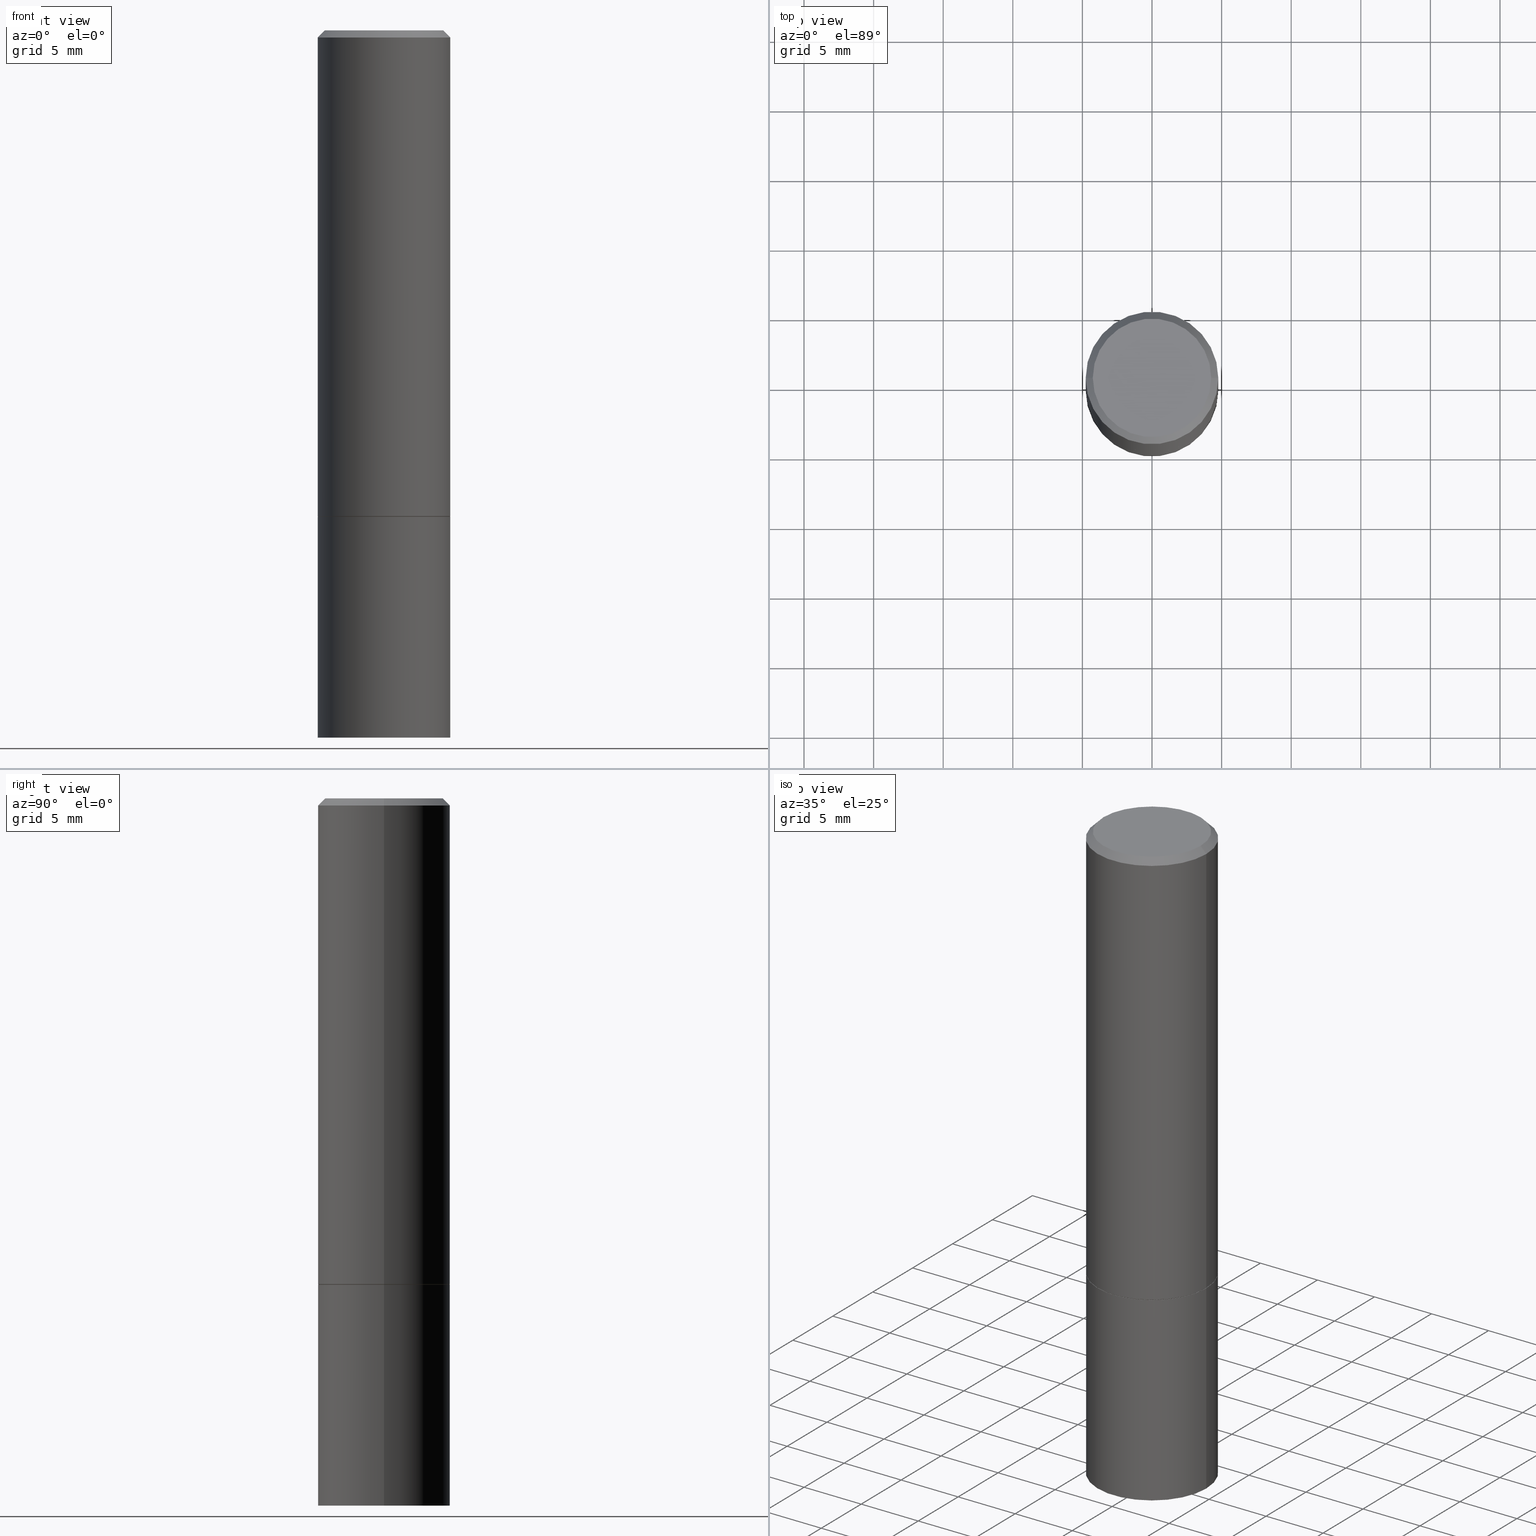
[diagram: canonical four-view strip — front | top / right | iso, engineering-drawing reading convention]
A machine part, canonical four-view strip (front | top / right | iso — engineering-drawing reading convention). The complete STEP part file that produces these views, byte-faithful:
ISO-10303-21;
HEADER;
FILE_DESCRIPTION (( 'STEP AP203' ),
    '1' );
FILE_NAME ('31259.STEP',
    '2024-02-27T12:58:54',
    ( '' ),
    ( '' ),
    'SwSTEP 2.0',
    'SolidWorks 2023',
    '' );
FILE_SCHEMA (( 'CONFIG_CONTROL_DESIGN' ));
ENDSEC;

DATA;
#1 = ORIENTED_EDGE ( 'NONE', *, *, #124, .F. ) ;
#2 = EDGE_LOOP ( 'NONE', ( #305, #269, #149, #128 ) ) ;
#3 = PERSON_AND_ORGANIZATION ( #155, #77 ) ;
#4 = CIRCLE ( 'NONE', #261, 0.1864999999999999714 ) ;
#5 = LOCAL_TIME ( 7, 58, 54.00000000000000000, #276 ) ;
#6 = ADVANCED_FACE ( 'NONE', ( #326 ), #299, .T. ) ;
#7 = DIRECTION ( 'NONE',  ( 1.000000000000000000, -6.982962677686266711E-15, 0.000000000000000000 ) ) ;
#8 = CC_DESIGN_PERSON_AND_ORGANIZATION_ASSIGNMENT ( #359, #62, ( #316 ) ) ;
#9 = CARTESIAN_POINT ( 'NONE',  ( 4.890937612370283668E-31, -6.982962677686305168E-17, -0.02000000000000004205 ) ) ;
#10 = CARTESIAN_POINT ( 'NONE',  ( 3.360074139698377778E-29, -4.797295359570481134E-15, -1.373999999999999888 ) ) ;
#11 = ADVANCED_FACE ( 'NONE', ( #349 ), #215, .T. ) ;
#12 = AXIS2_PLACEMENT_3D ( 'NONE', #157, #112, #7 ) ;
#13 = ORIENTED_EDGE ( 'NONE', *, *, #86, .F. ) ;
#14 = APPROVAL ( #301, 'UNSPECIFIED' ) ;
#15 = CARTESIAN_POINT ( 'NONE',  ( -0.1875000000000000278, -4.559607129747620988E-15, -2.000000000000000000 ) ) ;
#16 = EDGE_LOOP ( 'NONE', ( #297, #31, #340, #172 ) ) ;
#17 = DIRECTION ( 'NONE',  ( 1.000000000000000000, -6.982962677686266711E-15, 4.876176775795936914E-29 ) ) ;
#18 = DIRECTION ( 'NONE',  ( -2.445468806185136597E-29, 3.491481338843145583E-15, 1.000000000000000000 ) ) ;
#19 = AXIS2_PLACEMENT_3D ( 'NONE', #52, #167, #22 ) ;
#20 = DIRECTION ( 'NONE',  ( -2.445468806185136877E-29, 3.491481338843145188E-15, 1.000000000000000000 ) ) ;
#21 = CC_DESIGN_APPROVAL ( #14, ( #316 ) ) ;
#22 = DIRECTION ( 'NONE',  ( 1.000000000000000000, -6.982962677686265922E-15, 4.876176775795935793E-29 ) ) ;
#23 = PLANE ( 'NONE',  #311 ) ;
#24 = DIRECTION ( 'NONE',  ( -2.445468806185136597E-29, 3.491481338843145583E-15, 1.000000000000000000 ) ) ;
#25 = DATE_AND_TIME ( #273, #182 ) ;
#26 = CARTESIAN_POINT ( 'NONE',  ( 0.1874999999999998335, -1.356173001359024283E-15, -0.02000000000000004205 ) ) ;
#27 = APPLICATION_CONTEXT ( 'configuration controlled 3d designs of mechanical parts and assemblies' ) ;
#28 = ORIENTED_EDGE ( 'NONE', *, *, #188, .F. ) ;
#29 = EDGE_CURVE ( 'NONE', #339, #262, #300, .T. ) ;
#30 = AXIS2_PLACEMENT_3D ( 'NONE', #198, #360, #253 ) ;
#31 = ORIENTED_EDGE ( 'NONE', *, *, #185, .T. ) ;
#32 = APPROVAL_DATE_TIME ( #249, #309 ) ;
#33 = PRODUCT_DEFINITION ( 'UNKNOWN', '', #316, #275 ) ;
#34 = ADVANCED_FACE ( 'NONE', ( #194 ), #113, .T. ) ;
#35 = LINE ( 'NONE', #191, #234 ) ;
#36 = AXIS2_PLACEMENT_3D ( 'NONE', #83, #63, #243 ) ;
#37 =( GEOMETRIC_REPRESENTATION_CONTEXT ( 3 ) GLOBAL_UNCERTAINTY_ASSIGNED_CONTEXT ( ( #363 ) ) GLOBAL_UNIT_ASSIGNED_CONTEXT ( ( #313, #137, #193 ) ) REPRESENTATION_CONTEXT ( 'NONE', 'WORKASPACE' ) );
#38 = VERTEX_POINT ( 'NONE', #80 ) ;
#39 = CC_DESIGN_DATE_AND_TIME_ASSIGNMENT ( #251, #331, ( #33 ) ) ;
#40 = DIRECTION ( 'NONE',  ( 2.438088387897960049E-29, -3.491481338843145188E-15, -1.000000000000000000 ) ) ;
#41 = CARTESIAN_POINT ( 'NONE',  ( -0.1864999999999999714, -3.475624638716738484E-15, -1.375000000000000000 ) ) ;
#42 = CIRCLE ( 'NONE', #284, 0.1674999999999998435 ) ;
#43 = AXIS2_PLACEMENT_3D ( 'NONE', #104, #18, #48 ) ;
#44 = DIRECTION ( 'NONE',  ( 1.000000000000000000, -6.982962677686269077E-15, 0.000000000000000000 ) ) ;
#45 = DIRECTION ( 'NONE',  ( 2.445468806185136597E-29, -3.491481338843145583E-15, -1.000000000000000000 ) ) ;
#46 = CARTESIAN_POINT ( 'NONE',  ( 3.362519608504562260E-29, -4.800786840909324930E-15, -1.375000000000000000 ) ) ;
#47 = CARTESIAN_POINT ( 'NONE',  ( 3.362519608504562260E-29, -4.800786840909324930E-15, -1.375000000000000000 ) ) ;
#48 = DIRECTION ( 'NONE',  ( 1.000000000000000000, -6.982962677686266711E-15, 0.000000000000000000 ) ) ;
#49 = CIRCLE ( 'NONE', #295, 0.1875000000000000278 ) ;
#50 = SECURITY_CLASSIFICATION ( '', '', #334 ) ;
#51 = DIRECTION ( 'NONE',  ( 1.000000000000000000, -6.982962677686266711E-15, 0.000000000000000000 ) ) ;
#52 = CARTESIAN_POINT ( 'NONE',  ( 0.000000000000000000, 0.000000000000000000, 0.000000000000000000 ) ) ;
#53 = DIRECTION ( 'NONE',  ( -2.445468806185136597E-29, 3.491481338843145583E-15, 1.000000000000000000 ) ) ;
#54 = EDGE_CURVE ( 'NONE', #38, #84, #236, .T. ) ;
#55 = ORIENTED_EDGE ( 'NONE', *, *, #185, .F. ) ;
#56 = CARTESIAN_POINT ( 'NONE',  ( 0.1874999999999998335, -1.356173001359024283E-15, -0.02000000000000004205 ) ) ;
#57 = AXIS2_PLACEMENT_3D ( 'NONE', #9, #45, #211 ) ;
#58 = CARTESIAN_POINT ( 'NONE',  ( 4.890937612370283668E-31, -6.982962677686305168E-17, -0.02000000000000004205 ) ) ;
#59 = EDGE_LOOP ( 'NONE', ( #28, #230, #366, #67 ) ) ;
#60 = APPROVAL_ROLE ( '' ) ;
#61 = EDGE_LOOP ( 'NONE', ( #170, #310, #73, #13 ) ) ;
#62 = PERSON_AND_ORGANIZATION_ROLE ( 'design_supplier' ) ;
#63 = DIRECTION ( 'NONE',  ( -2.445468806185136597E-29, 3.491481338843145583E-15, 1.000000000000000000 ) ) ;
#64 = ORIENTED_EDGE ( 'NONE', *, *, #293, .T. ) ;
#65 = VECTOR ( 'NONE', #290, 39.37007874015748854 ) ;
#66 = DIRECTION ( 'NONE',  ( -2.438088387897960049E-29, 3.491481338843145188E-15, 1.000000000000000000 ) ) ;
#67 = ORIENTED_EDGE ( 'NONE', *, *, #54, .T. ) ;
#68 = APPLICATION_CONTEXT ( 'configuration controlled 3d designs of mechanical parts and assemblies' ) ;
#69 = DIRECTION ( 'NONE',  ( 1.000000000000000000, 0.000000000000000000, 0.000000000000000000 ) ) ;
#70 = ORIENTED_EDGE ( 'NONE', *, *, #286, .F. ) ;
#71 = ADVANCED_FACE ( 'NONE', ( #266 ), #307, .T. ) ;
#72 = ORIENTED_EDGE ( 'NONE', *, *, #246, .F. ) ;
#73 = ORIENTED_EDGE ( 'NONE', *, *, #105, .T. ) ;
#74 = CARTESIAN_POINT ( 'NONE',  ( 3.362519608504562260E-29, -4.800786840909324930E-15, -1.375000000000000000 ) ) ;
#75 = VECTOR ( 'NONE', #184, 39.37007874015748143 ) ;
#76 = CARTESIAN_POINT ( 'NONE',  ( 0.000000000000000000, 0.000000000000000000, 0.000000000000000000 ) ) ;
#77 = ORGANIZATION ( 'UNSPECIFIED', 'UNSPECIFIED', '' ) ;
#78 = DIRECTION ( 'NONE',  ( 1.000000000000000000, -6.982962677686266711E-15, 0.000000000000000000 ) ) ;
#79 = DIRECTION ( 'NONE',  ( -1.000000000000000000, 6.982962677686265922E-15, -4.876176775795935793E-29 ) ) ;
#80 = CARTESIAN_POINT ( 'NONE',  ( -0.1874999999999998335, 1.239475875289310724E-15, -0.02000000000000004205 ) ) ;
#81 = CC_DESIGN_APPROVAL ( #151, ( #33 ) ) ;
#82 = DIRECTION ( 'NONE',  ( 1.000000000000000000, -6.982962677686269077E-15, 0.000000000000000000 ) ) ;
#83 = CARTESIAN_POINT ( 'NONE',  ( 0.000000000000000000, 0.000000000000000000, 0.000000000000000000 ) ) ;
#84 = VERTEX_POINT ( 'NONE', #56 ) ;
#85 = DIRECTION ( 'NONE',  ( 0.7071067811865353603, -2.468850131082130054E-15, 0.7071067811865595631 ) ) ;
#86 = EDGE_CURVE ( 'NONE', #102, #38, #187, .T. ) ;
#87 = CARTESIAN_POINT ( 'NONE',  ( -0.1864999999999999714, -3.470326184368516082E-15, -1.375000000000000000 ) ) ;
#88 = COORDINATED_UNIVERSAL_TIME_OFFSET ( 5, 0, .BEHIND. ) ;
#89 = AXIS2_PLACEMENT_3D ( 'NONE', #116, #24, #242 ) ;
#90 = VERTEX_POINT ( 'NONE', #319 ) ;
#91 = APPROVAL_ROLE ( '' ) ;
#92 = ADVANCED_FACE ( 'NONE', ( #189 ), #168, .T. ) ;
#93 = LINE ( 'NONE', #26, #99 ) ;
#94 = ORIENTED_EDGE ( 'NONE', *, *, #318, .T. ) ;
#95 = PERSON_AND_ORGANIZATION ( #155, #77 ) ;
#96 = LINE ( 'NONE', #343, #117 ) ;
#97 = EDGE_LOOP ( 'NONE', ( #1, #121, #152, #308 ) ) ;
#98 = VERTEX_POINT ( 'NONE', #15 ) ;
#99 = VECTOR ( 'NONE', #197, 39.37007874015748143 ) ;
#100 = PLANE ( 'NONE',  #106 ) ;
#101 = EDGE_CURVE ( 'NONE', #271, #102, #42, .T. ) ;
#102 = VERTEX_POINT ( 'NONE', #138 ) ;
#103 = ORIENTED_EDGE ( 'NONE', *, *, #298, .F. ) ;
#104 = CARTESIAN_POINT ( 'NONE',  ( 3.362519608504562260E-29, -4.800786840909324930E-15, -1.375000000000000000 ) ) ;
#105 = EDGE_CURVE ( 'NONE', #84, #38, #177, .T. ) ;
#106 = AXIS2_PLACEMENT_3D ( 'NONE', #153, #66, #282 ) ;
#107 = FACE_OUTER_BOUND ( 'NONE', #335, .T. ) ;
#108 = ADVANCED_BREP_SHAPE_REPRESENTATION ( '31259', ( #344, #232, #118 ), #37 ) ;
#109 = EDGE_CURVE ( 'NONE', #262, #84, #226, .T. ) ;
#110 = CARTESIAN_POINT ( 'NONE',  ( 0.1875000000000000278, -6.106600861636656931E-15, -1.373999999999999888 ) ) ;
#111 = ADVANCED_FACE ( 'NONE', ( #178 ), #346, .F. ) ;
#112 = DIRECTION ( 'NONE',  ( -2.445468806185136597E-29, 3.491481338843145583E-15, 1.000000000000000000 ) ) ;
#113 = CYLINDRICAL_SURFACE ( 'NONE', #264, 0.1875000000000000278 ) ;
#114 = DIRECTION ( 'NONE',  ( -2.445468806185136597E-29, 3.491481338843145583E-15, 1.000000000000000000 ) ) ;
#115 = DIRECTION ( 'NONE',  ( -0.7071067811865466846, 2.468850131082247989E-15, -0.7071067811865483499 ) ) ;
#116 = CARTESIAN_POINT ( 'NONE',  ( 0.000000000000000000, 0.000000000000000000, 0.000000000000000000 ) ) ;
#117 = VECTOR ( 'NONE', #315, 39.37007874015748143 ) ;
#118 = AXIS2_PLACEMENT_3D ( 'NONE', #175, #147, #69 ) ;
#119 = DIRECTION ( 'NONE',  ( -1.000000000000000000, 6.982962677686265922E-15, -4.876176775795935793E-29 ) ) ;
#120 = DATE_AND_TIME ( #136, #209 ) ;
#121 = ORIENTED_EDGE ( 'NONE', *, *, #314, .T. ) ;
#122 = APPROVAL_DATE_TIME ( #220, #151 ) ;
#123 = ORIENTED_EDGE ( 'NONE', *, *, #355, .T. ) ;
#124 = EDGE_CURVE ( 'NONE', #199, #38, #35, .T. ) ;
#125 = AXIS2_PLACEMENT_3D ( 'NONE', #317, #347, #78 ) ;
#126 = CIRCLE ( 'NONE', #43, 0.1875000000000000278 ) ;
#127 = ORIENTED_EDGE ( 'NONE', *, *, #286, .T. ) ;
#128 = ORIENTED_EDGE ( 'NONE', *, *, #109, .F. ) ;
#129 = CC_DESIGN_DATE_AND_TIME_ASSIGNMENT ( #120, #285, ( #50 ) ) ;
#130 = PRODUCT ( '31259', '31259', '', ( #257 ) ) ;
#131 = CC_DESIGN_PERSON_AND_ORGANIZATION_ASSIGNMENT ( #247, #356, ( #316 ) ) ;
#132 = AXIS2_PLACEMENT_3D ( 'NONE', #58, #277, #354 ) ;
#133 = CARTESIAN_POINT ( 'NONE',  ( -0.1875000000000000278, -4.559607129747620988E-15, -1.375000000000000000 ) ) ;
#134 = CARTESIAN_POINT ( 'NONE',  ( 3.362519608504562260E-29, -4.800786840909324930E-15, -1.375000000000000000 ) ) ;
#135 = ADVANCED_FACE ( 'NONE', ( #274 ), #23, .T. ) ;
#136 = CALENDAR_DATE ( 2024, 27, 2 ) ;
#137 =( NAMED_UNIT ( * ) PLANE_ANGLE_UNIT ( ) SI_UNIT ( $, .RADIAN. ) );
#138 = CARTESIAN_POINT ( 'NONE',  ( -0.1674999999999998435, 1.204561061900879864E-15, -8.301862719484106184E-30 ) ) ;
#139 = AXIS2_PLACEMENT_3D ( 'NONE', #47, #327, #163 ) ;
#140 = LOCAL_TIME ( 7, 58, 54.00000000000000000, #88 ) ;
#141 = PRODUCT_RELATED_PRODUCT_CATEGORY ( 'detail', '', ( #130 ) ) ;
#142 = CARTESIAN_POINT ( 'NONE',  ( 0.1864999999999999714, -6.103109380297813924E-15, -1.375000000000000000 ) ) ;
#143 = APPROVAL_DATE_TIME ( #25, #14 ) ;
#144 = CALENDAR_DATE ( 2024, 27, 2 ) ;
#145 = CALENDAR_DATE ( 2024, 27, 2 ) ;
#146 = CIRCLE ( 'NONE', #364, 0.1875000000000000278 ) ;
#147 = DIRECTION ( 'NONE',  ( 0.000000000000000000, 0.000000000000000000, 1.000000000000000000 ) ) ;
#148 = CIRCLE ( 'NONE', #338, 0.1875000000000000278 ) ;
#149 = ORIENTED_EDGE ( 'NONE', *, *, #105, .F. ) ;
#150 = DIMENSIONAL_EXPONENTS ( 1.000000000000000000, 0.000000000000000000, 0.000000000000000000, 0.000000000000000000, 0.000000000000000000, 0.000000000000000000, 0.000000000000000000 ) ;
#151 = APPROVAL ( #224, 'UNSPECIFIED' ) ;
#152 = ORIENTED_EDGE ( 'NONE', *, *, #109, .T. ) ;
#153 = CARTESIAN_POINT ( 'NONE',  ( 3.362519608504562260E-29, -4.800786840909324930E-15, -1.375000000000000000 ) ) ;
#154 = DIRECTION ( 'NONE',  ( -2.445468806185136877E-29, 3.491481338843145188E-15, 1.000000000000000000 ) ) ;
#155 = PERSON ( 'UNSPECIFIED', 'UNSPECIFIED', 'UNSPECIFIED', ('UNSPECIFIED'), ('UNSPECIFIED'), ('UNSPECIFIED') ) ;
#156 = AXIS2_PLACEMENT_3D ( 'NONE', #267, #294, #352 ) ;
#157 = CARTESIAN_POINT ( 'NONE',  ( 4.890937612370273194E-29, -6.982962677686291165E-15, -2.000000000000000000 ) ) ;
#158 = FACE_OUTER_BOUND ( 'NONE', #61, .T. ) ;
#159 = FACE_OUTER_BOUND ( 'NONE', #258, .T. ) ;
#160 = CIRCLE ( 'NONE', #12, 0.1875000000000000278 ) ;
#161 = LOCAL_TIME ( 7, 58, 54.00000000000000000, #337 ) ;
#162 = DIRECTION ( 'NONE',  ( 2.438088387897960049E-29, -3.491481338843145188E-15, -1.000000000000000000 ) ) ;
#163 = DIRECTION ( 'NONE',  ( 1.000000000000000000, -6.982962677686269077E-15, 0.000000000000000000 ) ) ;
#164 = CARTESIAN_POINT ( 'NONE',  ( 3.360074139698377778E-29, -4.797295359570481134E-15, -1.373999999999999888 ) ) ;
#165 = ORIENTED_EDGE ( 'NONE', *, *, #298, .T. ) ;
#166 = CARTESIAN_POINT ( 'NONE',  ( 1.309305502066208732E-15, 0.1874999999999951983, -1.375000000000000444 ) ) ;
#167 = DIRECTION ( 'NONE',  ( -2.445468806185136597E-29, 3.491481338843145583E-15, 1.000000000000000000 ) ) ;
#168 = CYLINDRICAL_SURFACE ( 'NONE', #19, 0.1874999999999999167 ) ;
#169 = PERSON_AND_ORGANIZATION ( #155, #77 ) ;
#170 = ORIENTED_EDGE ( 'NONE', *, *, #101, .F. ) ;
#171 = CARTESIAN_POINT ( 'NONE',  ( -0.1874999999999999722, -1.101294863623483776E-15, -1.373999999999999888 ) ) ;
#172 = ORIENTED_EDGE ( 'NONE', *, *, #355, .F. ) ;
#173 = COORDINATED_UNIVERSAL_TIME_OFFSET ( 5, 0, .BEHIND. ) ;
#174 = DIRECTION ( 'NONE',  ( 1.000000000000000000, -6.982962677686266711E-15, 0.000000000000000000 ) ) ;
#175 = CARTESIAN_POINT ( 'NONE',  ( 0.000000000000000000, 0.000000000000000000, 0.000000000000000000 ) ) ;
#176 = ORIENTED_EDGE ( 'NONE', *, *, #180, .T. ) ;
#177 = CIRCLE ( 'NONE', #30, 0.1874999999999998335 ) ;
#178 = FACE_OUTER_BOUND ( 'NONE', #281, .T. ) ;
#179 = ORIENTED_EDGE ( 'NONE', *, *, #328, .F. ) ;
#180 = EDGE_CURVE ( 'NONE', #102, #271, #288, .T. ) ;
#181 = VECTOR ( 'NONE', #154, 39.37007874015748143 ) ;
#182 = LOCAL_TIME ( 7, 58, 54.00000000000000000, #303 ) ;
#183 = ADVANCED_FACE ( 'NONE', ( #218 ), #330, .T. ) ;
#184 = DIRECTION ( 'NONE',  ( -2.445468806185136877E-29, 3.491481338843145188E-15, 1.000000000000000000 ) ) ;
#185 = EDGE_CURVE ( 'NONE', #98, #223, #248, .T. ) ;
#186 = DIRECTION ( 'NONE',  ( 1.000000000000000000, -6.982962677686266711E-15, 0.000000000000000000 ) ) ;
#187 = LINE ( 'NONE', #324, #350 ) ;
#188 = EDGE_CURVE ( 'NONE', #271, #84, #93, .T. ) ;
#189 = FACE_OUTER_BOUND ( 'NONE', #2, .T. ) ;
#190 = CARTESIAN_POINT ( 'NONE',  ( 0.000000000000000000, 0.000000000000000000, 0.000000000000000000 ) ) ;
#191 = CARTESIAN_POINT ( 'NONE',  ( -0.1874999999999999167, 1.332267629550187257E-15, -9.223003294227943787E-30 ) ) ;
#192 = DIRECTION ( 'NONE',  ( 2.438088387897960049E-29, -3.491481338843145188E-15, -1.000000000000000000 ) ) ;
#193 =( NAMED_UNIT ( * ) SI_UNIT ( $, .STERADIAN. ) SOLID_ANGLE_UNIT ( ) );
#194 = FACE_OUTER_BOUND ( 'NONE', #16, .T. ) ;
#195 = AXIS2_PLACEMENT_3D ( 'NONE', #353, #40, #79 ) ;
#196 = PERSON_AND_ORGANIZATION ( #155, #77 ) ;
#197 = DIRECTION ( 'NONE',  ( 0.7071067811865466846, -7.319954787623252890E-15, -0.7071067811865483499 ) ) ;
#198 = CARTESIAN_POINT ( 'NONE',  ( 4.890937612370283668E-31, -6.982962677686305168E-17, -0.02000000000000004205 ) ) ;
#199 = VERTEX_POINT ( 'NONE', #171 ) ;
#200 = CARTESIAN_POINT ( 'NONE',  ( 0.1874999999999999167, -1.309305502066174219E-15, 9.142831454617375408E-30 ) ) ;
#201 = EDGE_LOOP ( 'NONE', ( #72, #165, #225, #268 ) ) ;
#202 = APPLICATION_PROTOCOL_DEFINITION ( 'international standard', 'config_control_design', 1994, #27 ) ;
#203 = AXIS2_PLACEMENT_3D ( 'NONE', #74, #292, #44 ) ;
#204 = PRODUCT_DEFINITION_SHAPE ( 'NONE', 'NONE',  #33 ) ;
#205 = ORIENTED_EDGE ( 'NONE', *, *, #328, .T. ) ;
#206 = EDGE_CURVE ( 'NONE', #262, #199, #148, .T. ) ;
#207 = CARTESIAN_POINT ( 'NONE',  ( -0.1875000000000000278, 1.332267629550188046E-15, -9.223003294227947991E-30 ) ) ;
#208 = VECTOR ( 'NONE', #85, 39.37007874015748854 ) ;
#209 = LOCAL_TIME ( 7, 58, 54.00000000000000000, #173 ) ;
#210 = PERSON_AND_ORGANIZATION ( #155, #77 ) ;
#211 = DIRECTION ( 'NONE',  ( -1.000000000000000000, 6.982962677686266711E-15, 0.000000000000000000 ) ) ;
#212 = CARTESIAN_POINT ( 'NONE',  ( 0.000000000000000000, 0.000000000000000000, 0.000000000000000000 ) ) ;
#213 = CC_DESIGN_PERSON_AND_ORGANIZATION_ASSIGNMENT ( #95, #304, ( #50 ) ) ;
#214 = DIRECTION ( 'NONE',  ( -2.445468806185136597E-29, 3.491481338843145583E-15, 1.000000000000000000 ) ) ;
#215 = CYLINDRICAL_SURFACE ( 'NONE', #89, 0.1874999999999999167 ) ;
#216 = CONICAL_SURFACE ( 'NONE', #57, 0.1874999999999998335, 0.7853981633974471688 ) ;
#217 = DIRECTION ( 'NONE',  ( 1.000000000000000000, -6.982962677686265922E-15, 4.876176775795935793E-29 ) ) ;
#218 = FACE_OUTER_BOUND ( 'NONE', #59, .T. ) ;
#219 = CC_DESIGN_PERSON_AND_ORGANIZATION_ASSIGNMENT ( #210, #325, ( #130 ) ) ;
#220 = DATE_AND_TIME ( #329, #161 ) ;
#221 = EDGE_LOOP ( 'NONE', ( #205, #233, #239, #336 ) ) ;
#222 = CIRCLE ( 'NONE', #203, 0.1864999999999999714 ) ;
#223 = VERTEX_POINT ( 'NONE', #341 ) ;
#224 = APPROVAL_STATUS ( 'not_yet_approved' ) ;
#225 = ORIENTED_EDGE ( 'NONE', *, *, #29, .T. ) ;
#226 = LINE ( 'NONE', #200, #181 ) ;
#227 = PERSON_AND_ORGANIZATION ( #155, #77 ) ;
#228 = APPROVAL_STATUS ( 'not_yet_approved' ) ;
#229 = FACE_OUTER_BOUND ( 'NONE', #283, .T. ) ;
#230 = ORIENTED_EDGE ( 'NONE', *, *, #180, .F. ) ;
#231 = CLOSED_SHELL ( 'NONE', ( #254, #135, #111, #34 ) ) ;
#232 = MANIFOLD_SOLID_BREP ( 'Body-Move/Copy2[2]', #241 ) ;
#233 = ORIENTED_EDGE ( 'NONE', *, *, #246, .T. ) ;
#234 = VECTOR ( 'NONE', #20, 39.37007874015748143 ) ;
#235 = DIRECTION ( 'NONE',  ( 1.000000000000000000, -6.982962677686265922E-15, 4.876176775795935793E-29 ) ) ;
#236 = CIRCLE ( 'NONE', #125, 0.1874999999999998335 ) ;
#237 = DIRECTION ( 'NONE',  ( -2.445468806185136597E-29, 3.491481338843145583E-15, 1.000000000000000000 ) ) ;
#238 = DIRECTION ( 'NONE',  ( -2.445468806185136597E-29, 3.491481338843145583E-15, 1.000000000000000000 ) ) ;
#239 = ORIENTED_EDGE ( 'NONE', *, *, #206, .F. ) ;
#240 = ADVANCED_FACE ( 'NONE', ( #229 ), #100, .F. ) ;
#241 = CLOSED_SHELL ( 'NONE', ( #6, #92, #306, #183, #11, #71, #240, #259 ) ) ;
#242 = DIRECTION ( 'NONE',  ( 1.000000000000000000, -6.982962677686265922E-15, 4.876176775795935793E-29 ) ) ;
#243 = DIRECTION ( 'NONE',  ( 1.000000000000000000, -6.982962677686266711E-15, 4.876176775795936914E-29 ) ) ;
#244 = CARTESIAN_POINT ( 'NONE',  ( 0.1864999999999999714, -6.103109380297813924E-15, -1.375000000000000000 ) ) ;
#245 = CARTESIAN_POINT ( 'NONE',  ( 1.309305502066224115E-15, 0.1874999999999930611, -2.000000000000000444 ) ) ;
#246 = EDGE_CURVE ( 'NONE', #332, #199, #287, .T. ) ;
#247 = PERSON_AND_ORGANIZATION ( #155, #77 ) ;
#248 = CIRCLE ( 'NONE', #321, 0.1875000000000000278 ) ;
#249 = DATE_AND_TIME ( #144, #5 ) ;
#250 = APPROVAL_PERSON_ORGANIZATION ( #3, #309, #91 ) ;
#251 = DATE_AND_TIME ( #145, #140 ) ;
#252 = SHAPE_DEFINITION_REPRESENTATION ( #204, #108 ) ;
#253 = DIRECTION ( 'NONE',  ( 1.000000000000000000, -6.982962677686266711E-15, 0.000000000000000000 ) ) ;
#254 = ADVANCED_FACE ( 'NONE', ( #159 ), #322, .T. ) ;
#255 = AXIS2_PLACEMENT_3D ( 'NONE', #166, #162, #278 ) ;
#256 = CC_DESIGN_SECURITY_CLASSIFICATION ( #50, ( #316 ) ) ;
#257 = MECHANICAL_CONTEXT ( 'NONE', #27, 'mechanical' ) ;
#258 = EDGE_LOOP ( 'NONE', ( #127, #64, #289, #272 ) ) ;
#259 = ADVANCED_FACE ( 'NONE', ( #107 ), #291, .F. ) ;
#260 = ORIENTED_EDGE ( 'NONE', *, *, #101, .T. ) ;
#261 = AXIS2_PLACEMENT_3D ( 'NONE', #134, #114, #82 ) ;
#262 = VERTEX_POINT ( 'NONE', #110 ) ;
#263 = APPLICATION_PROTOCOL_DEFINITION ( 'international standard', 'config_control_design', 1994, #68 ) ;
#264 = AXIS2_PLACEMENT_3D ( 'NONE', #212, #237, #217 ) ;
#265 = CARTESIAN_POINT ( 'NONE',  ( 0.1674999999999998435, -1.252653207992877302E-15, 8.469775550109232378E-30 ) ) ;
#266 = FACE_OUTER_BOUND ( 'NONE', #201, .T. ) ;
#267 = CARTESIAN_POINT ( 'NONE',  ( 3.362519608504562260E-29, -4.800786840909324930E-15, -1.375000000000000000 ) ) ;
#268 = ORIENTED_EDGE ( 'NONE', *, *, #314, .F. ) ;
#269 = ORIENTED_EDGE ( 'NONE', *, *, #124, .T. ) ;
#270 = PERSON_AND_ORGANIZATION_ROLE ( 'creator' ) ;
#271 = VERTEX_POINT ( 'NONE', #265 ) ;
#272 = ORIENTED_EDGE ( 'NONE', *, *, #342, .F. ) ;
#273 = CALENDAR_DATE ( 2024, 27, 2 ) ;
#274 = FACE_OUTER_BOUND ( 'NONE', #279, .T. ) ;
#275 = DESIGN_CONTEXT ( 'detailed design', #68, 'design' ) ;
#276 = COORDINATED_UNIVERSAL_TIME_OFFSET ( 5, 0, .BEHIND. ) ;
#277 = DIRECTION ( 'NONE',  ( 2.445468806185136597E-29, -3.491481338843145583E-15, -1.000000000000000000 ) ) ;
#278 = DIRECTION ( 'NONE',  ( -1.000000000000000000, 6.982962677686265922E-15, -4.876176775795935793E-29 ) ) ;
#279 = EDGE_LOOP ( 'NONE', ( #70, #55 ) ) ;
#280 = CC_DESIGN_APPROVAL ( #309, ( #50 ) ) ;
#281 = EDGE_LOOP ( 'NONE', ( #94, #123 ) ) ;
#282 = DIRECTION ( 'NONE',  ( 1.000000000000000000, -6.982962677686265922E-15, 4.876176775795935793E-29 ) ) ;
#283 = EDGE_LOOP ( 'NONE', ( #179, #103 ) ) ;
#284 = AXIS2_PLACEMENT_3D ( 'NONE', #190, #53, #17 ) ;
#285 = DATE_TIME_ROLE ( 'classification_date' ) ;
#286 = EDGE_CURVE ( 'NONE', #223, #98, #160, .T. ) ;
#287 = LINE ( 'NONE', #41, #65 ) ;
#288 = CIRCLE ( 'NONE', #36, 0.1674999999999998435 ) ;
#289 = ORIENTED_EDGE ( 'NONE', *, *, #318, .F. ) ;
#290 = DIRECTION ( 'NONE',  ( -0.7071067811865353603, 7.493145998870309984E-15, 0.7071067811865595631 ) ) ;
#291 = PLANE ( 'NONE',  #195 ) ;
#292 = DIRECTION ( 'NONE',  ( -2.445468806185136597E-29, 3.491481338843145583E-15, 1.000000000000000000 ) ) ;
#293 = EDGE_CURVE ( 'NONE', #98, #333, #345, .T. ) ;
#294 = DIRECTION ( 'NONE',  ( -2.445468806185136597E-29, 3.491481338843145583E-15, 1.000000000000000000 ) ) ;
#295 = AXIS2_PLACEMENT_3D ( 'NONE', #10, #296, #186 ) ;
#296 = DIRECTION ( 'NONE',  ( -2.445468806185136597E-29, 3.491481338843145583E-15, 1.000000000000000000 ) ) ;
#297 = ORIENTED_EDGE ( 'NONE', *, *, #293, .F. ) ;
#298 = EDGE_CURVE ( 'NONE', #332, #339, #222, .T. ) ;
#299 = CONICAL_SURFACE ( 'NONE', #139, 0.1864999999999999714, 0.7853981633974311816 ) ;
#300 = LINE ( 'NONE', #142, #208 ) ;
#301 = APPROVAL_STATUS ( 'not_yet_approved' ) ;
#302 = DIRECTION ( 'NONE',  ( -2.445468806185136597E-29, 3.491481338843145583E-15, 1.000000000000000000 ) ) ;
#303 = COORDINATED_UNIVERSAL_TIME_OFFSET ( 5, 0, .BEHIND. ) ;
#304 = PERSON_AND_ORGANIZATION_ROLE ( 'classification_officer' ) ;
#305 = ORIENTED_EDGE ( 'NONE', *, *, #206, .T. ) ;
#306 = ADVANCED_FACE ( 'NONE', ( #158 ), #216, .T. ) ;
#307 = CONICAL_SURFACE ( 'NONE', #156, 0.1864999999999999714, 0.7853981633974311816 ) ;
#308 = ORIENTED_EDGE ( 'NONE', *, *, #54, .F. ) ;
#309 = APPROVAL ( #228, 'UNSPECIFIED' ) ;
#310 = ORIENTED_EDGE ( 'NONE', *, *, #188, .T. ) ;
#311 = AXIS2_PLACEMENT_3D ( 'NONE', #245, #192, #119 ) ;
#312 = APPROVAL_PERSON_ORGANIZATION ( #227, #151, #361 ) ;
#313 =( CONVERSION_BASED_UNIT ( 'INCH', #320 ) LENGTH_UNIT ( ) NAMED_UNIT ( #150 ) );
#314 = EDGE_CURVE ( 'NONE', #199, #262, #49, .T. ) ;
#315 = DIRECTION ( 'NONE',  ( -2.445468806185136877E-29, 3.491481338843145188E-15, 1.000000000000000000 ) ) ;
#316 = PRODUCT_DEFINITION_FORMATION_WITH_SPECIFIED_SOURCE ( 'ANY', '', #130, .NOT_KNOWN. ) ;
#317 = CARTESIAN_POINT ( 'NONE',  ( 4.890937612370283668E-31, -6.982962677686305168E-17, -0.02000000000000004205 ) ) ;
#318 = EDGE_CURVE ( 'NONE', #90, #333, #146, .T. ) ;
#319 = CARTESIAN_POINT ( 'NONE',  ( 0.1875000000000000278, -6.110092342975500727E-15, -1.375000000000000000 ) ) ;
#320 = LENGTH_MEASURE_WITH_UNIT ( LENGTH_MEASURE( 0.02539999999999999897 ), #348 );
#321 = AXIS2_PLACEMENT_3D ( 'NONE', #358, #302, #323 ) ;
#322 = CYLINDRICAL_SURFACE ( 'NONE', #357, 0.1875000000000000278 ) ;
#323 = DIRECTION ( 'NONE',  ( 1.000000000000000000, -6.982962677686266711E-15, 0.000000000000000000 ) ) ;
#324 = CARTESIAN_POINT ( 'NONE',  ( -0.1874999999999998335, 1.239475875289310724E-15, -0.02000000000000004205 ) ) ;
#325 = PERSON_AND_ORGANIZATION_ROLE ( 'design_owner' ) ;
#326 = FACE_OUTER_BOUND ( 'NONE', #221, .T. ) ;
#327 = DIRECTION ( 'NONE',  ( -2.445468806185136597E-29, 3.491481338843145583E-15, 1.000000000000000000 ) ) ;
#328 = EDGE_CURVE ( 'NONE', #339, #332, #4, .T. ) ;
#329 = CALENDAR_DATE ( 2024, 27, 2 ) ;
#330 = CONICAL_SURFACE ( 'NONE', #132, 0.1874999999999998335, 0.7853981633974471688 ) ;
#331 = DATE_TIME_ROLE ( 'creation_date' ) ;
#332 = VERTEX_POINT ( 'NONE', #87 ) ;
#333 = VERTEX_POINT ( 'NONE', #133 ) ;
#334 = SECURITY_CLASSIFICATION_LEVEL ( 'unclassified' ) ;
#335 = EDGE_LOOP ( 'NONE', ( #176, #260 ) ) ;
#336 = ORIENTED_EDGE ( 'NONE', *, *, #29, .F. ) ;
#337 = COORDINATED_UNIVERSAL_TIME_OFFSET ( 5, 0, .BEHIND. ) ;
#338 = AXIS2_PLACEMENT_3D ( 'NONE', #164, #351, #174 ) ;
#339 = VERTEX_POINT ( 'NONE', #244 ) ;
#340 = ORIENTED_EDGE ( 'NONE', *, *, #342, .T. ) ;
#341 = CARTESIAN_POINT ( 'NONE',  ( 0.1875000000000000278, -8.292268179752466962E-15, -2.000000000000000000 ) ) ;
#342 = EDGE_CURVE ( 'NONE', #223, #90, #96, .T. ) ;
#343 = CARTESIAN_POINT ( 'NONE',  ( 0.1875000000000000278, -1.309305502066175008E-15, 9.142831454617381013E-30 ) ) ;
#344 = MANIFOLD_SOLID_BREP ( 'Body-Move/Copy2[1]', #231 ) ;
#345 = LINE ( 'NONE', #207, #75 ) ;
#346 = PLANE ( 'NONE',  #255 ) ;
#347 = DIRECTION ( 'NONE',  ( -2.445468806185136597E-29, 3.491481338843145583E-15, 1.000000000000000000 ) ) ;
#348 =( LENGTH_UNIT ( ) NAMED_UNIT ( * ) SI_UNIT ( $, .METRE. ) );
#349 = FACE_OUTER_BOUND ( 'NONE', #97, .T. ) ;
#350 = VECTOR ( 'NONE', #115, 39.37007874015748143 ) ;
#351 = DIRECTION ( 'NONE',  ( -2.445468806185136597E-29, 3.491481338843145583E-15, 1.000000000000000000 ) ) ;
#352 = DIRECTION ( 'NONE',  ( 1.000000000000000000, -6.982962677686269077E-15, 0.000000000000000000 ) ) ;
#353 = CARTESIAN_POINT ( 'NONE',  ( 1.169646248512448609E-15, 0.1674999999999998435, -5.848231242562263753E-16 ) ) ;
#354 = DIRECTION ( 'NONE',  ( -1.000000000000000000, 6.982962677686266711E-15, 0.000000000000000000 ) ) ;
#355 = EDGE_CURVE ( 'NONE', #333, #90, #126, .T. ) ;
#356 = PERSON_AND_ORGANIZATION_ROLE ( 'creator' ) ;
#357 = AXIS2_PLACEMENT_3D ( 'NONE', #76, #238, #235 ) ;
#358 = CARTESIAN_POINT ( 'NONE',  ( 4.890937612370273194E-29, -6.982962677686291165E-15, -2.000000000000000000 ) ) ;
#359 = PERSON_AND_ORGANIZATION ( #155, #77 ) ;
#360 = DIRECTION ( 'NONE',  ( -2.445468806185136597E-29, 3.491481338843145583E-15, 1.000000000000000000 ) ) ;
#361 = APPROVAL_ROLE ( '' ) ;
#362 = CC_DESIGN_PERSON_AND_ORGANIZATION_ASSIGNMENT ( #169, #270, ( #33 ) ) ;
#363 = UNCERTAINTY_MEASURE_WITH_UNIT (LENGTH_MEASURE( 1.000000000000000082E-05 ), #313, 'distance_accuracy_value', 'NONE');
#364 = AXIS2_PLACEMENT_3D ( 'NONE', #46, #214, #51 ) ;
#365 = APPROVAL_PERSON_ORGANIZATION ( #196, #14, #60 ) ;
#366 = ORIENTED_EDGE ( 'NONE', *, *, #86, .T. ) ;
ENDSEC;
END-ISO-10303-21;
